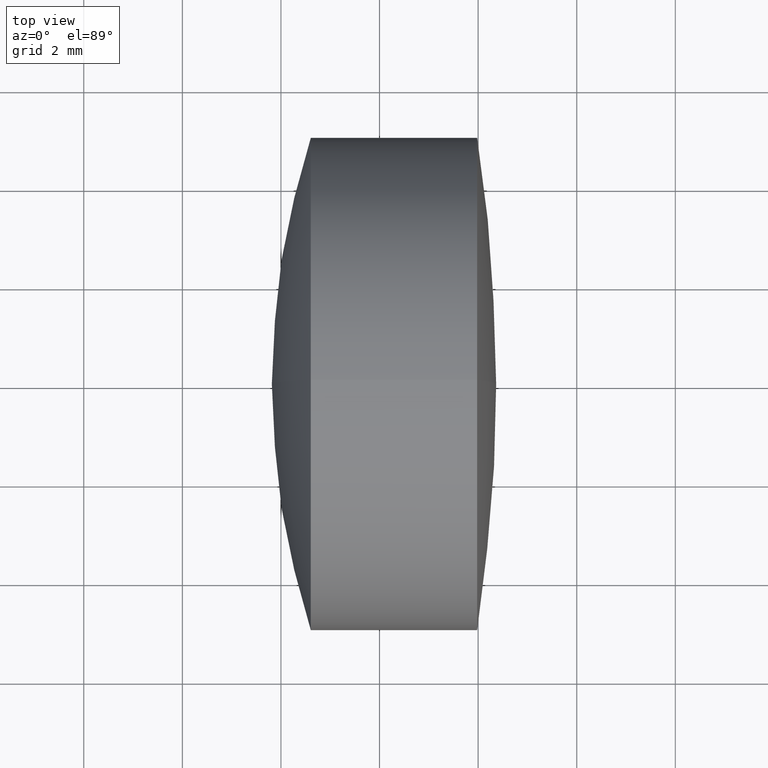
[diagram: clean part render]
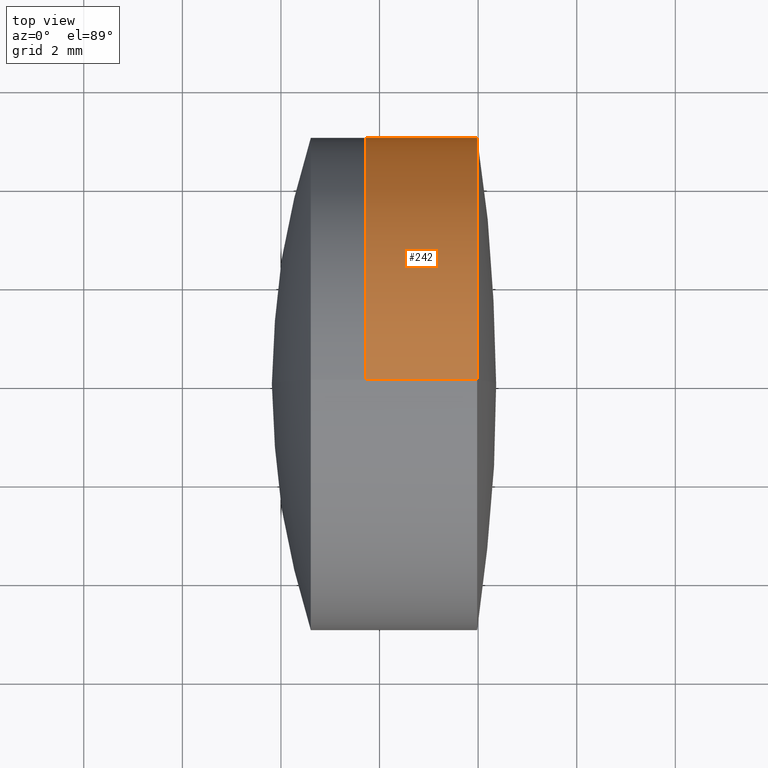
[diagram: same view with one face highlighted and labeled with its STEP entity id]
A machine part, top view. The second image highlights one B-rep face of the part: STEP entity #242.
In plain terms, the highlighted cylindrical surface (partial cylindrical patch) has radius 5 mm, axis along (-1, -0, -0).
Its self-contained STEP definition (entity closure, byte-faithful):
#1 = CYLINDRICAL_SURFACE ( 'NONE', #227, 4.999999999999997300 ) ;
#8 = DIRECTION ( 'NONE',  ( -1.000000000000000000, -0.0000000000000000000, -0.0000000000000000000 ) ) ;
#9 = AXIS2_PLACEMENT_3D ( 'NONE', #255, #104, #235 ) ;
#19 = VERTEX_POINT ( 'NONE', #77 ) ;
#20 = VERTEX_POINT ( 'NONE', #62 ) ;
#29 = VERTEX_POINT ( 'NONE', #115 ) ;
#36 = ORIENTED_EDGE ( 'NONE', *, *, #161, .T. ) ;
#41 = DIRECTION ( 'NONE',  ( 0.0000000000000000000, 0.0000000000000000000, 1.000000000000000000 ) ) ;
#42 = EDGE_CURVE ( 'NONE', #20, #29, #309, .T. ) ;
#45 = ORIENTED_EDGE ( 'NONE', *, *, #42, .T. ) ;
#56 = VECTOR ( 'NONE', #60, 1000.000000000000000 ) ;
#60 = DIRECTION ( 'NONE',  ( -1.000000000000000000, -0.0000000000000000000, -0.0000000000000000000 ) ) ;
#62 = CARTESIAN_POINT ( 'NONE',  ( 5.980462902601981800, 6.123233995736762300E-016, -4.999999999999995600 ) ) ;
#77 = CARTESIAN_POINT ( 'NONE',  ( 5.980462902601981800, 0.0000000000000000000, 4.999999999999995600 ) ) ;
#81 = EDGE_CURVE ( 'NONE', #19, #347, #106, .T. ) ;
#104 = DIRECTION ( 'NONE',  ( -1.000000000000000000, -0.0000000000000000000, -0.0000000000000000000 ) ) ;
#106 = LINE ( 'NONE', #132, #158 ) ;
#115 = CARTESIAN_POINT ( 'NONE',  ( 3.722280238489434500, 6.123233995736763300E-016, -4.999999999999997300 ) ) ;
#132 = CARTESIAN_POINT ( 'NONE',  ( -0.5519199926577972300, 0.0000000000000000000, 4.999999999999997300 ) ) ;
#151 = DIRECTION ( 'NONE',  ( -1.000000000000000000, -0.0000000000000000000, -0.0000000000000000000 ) ) ;
#152 = AXIS2_PLACEMENT_3D ( 'NONE', #168, #8, #333 ) ;
#158 = VECTOR ( 'NONE', #151, 1000.000000000000000 ) ;
#161 = EDGE_CURVE ( 'NONE', #19, #20, #286, .T. ) ;
#165 = EDGE_LOOP ( 'NONE', ( #36, #45, #196, #174 ) ) ;
#168 = CARTESIAN_POINT ( 'NONE',  ( 3.722280238489433100, 0.0000000000000000000, 0.0000000000000000000 ) ) ;
#174 = ORIENTED_EDGE ( 'NONE', *, *, #81, .F. ) ;
#196 = ORIENTED_EDGE ( 'NONE', *, *, #214, .F. ) ;
#212 = FACE_OUTER_BOUND ( 'NONE', #165, .T. ) ;
#214 = EDGE_CURVE ( 'NONE', #347, #29, #232, .T. ) ;
#223 = CARTESIAN_POINT ( 'NONE',  ( 3.722280238489434500, 0.0000000000000000000, 4.999999999999997300 ) ) ;
#227 = AXIS2_PLACEMENT_3D ( 'NONE', #265, #241, #41 ) ;
#232 = CIRCLE ( 'NONE', #152, 4.999999999999999100 ) ;
#235 = DIRECTION ( 'NONE',  ( 0.0000000000000000000, 0.0000000000000000000, 1.000000000000000000 ) ) ;
#241 = DIRECTION ( 'NONE',  ( -1.000000000000000000, -0.0000000000000000000, -0.0000000000000000000 ) ) ;
#242 = ADVANCED_FACE ( 'NONE', ( #212 ), #1, .T. ) ;
#255 = CARTESIAN_POINT ( 'NONE',  ( 5.980462902601981800, 0.0000000000000000000, 0.0000000000000000000 ) ) ;
#265 = CARTESIAN_POINT ( 'NONE',  ( -0.5519199926577972300, 0.0000000000000000000, 0.0000000000000000000 ) ) ;
#286 = CIRCLE ( 'NONE', #9, 4.999999999999995600 ) ;
#309 = LINE ( 'NONE', #328, #56 ) ;
#328 = CARTESIAN_POINT ( 'NONE',  ( -0.5519199926577972300, 6.123233995736763300E-016, -4.999999999999997300 ) ) ;
#333 = DIRECTION ( 'NONE',  ( 0.0000000000000000000, 0.0000000000000000000, 1.000000000000000000 ) ) ;
#347 = VERTEX_POINT ( 'NONE', #223 ) ;